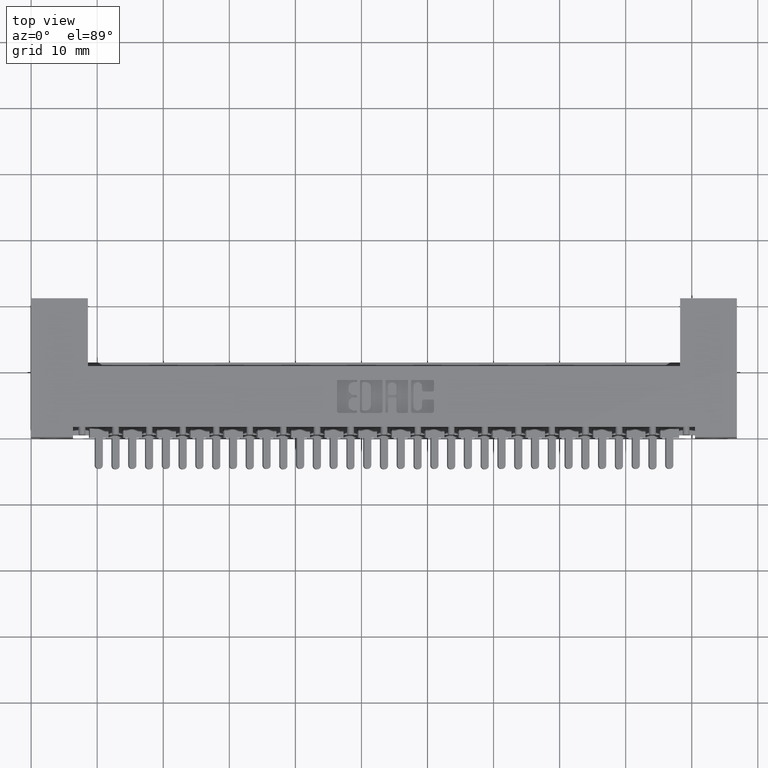
[diagram: clean part render]
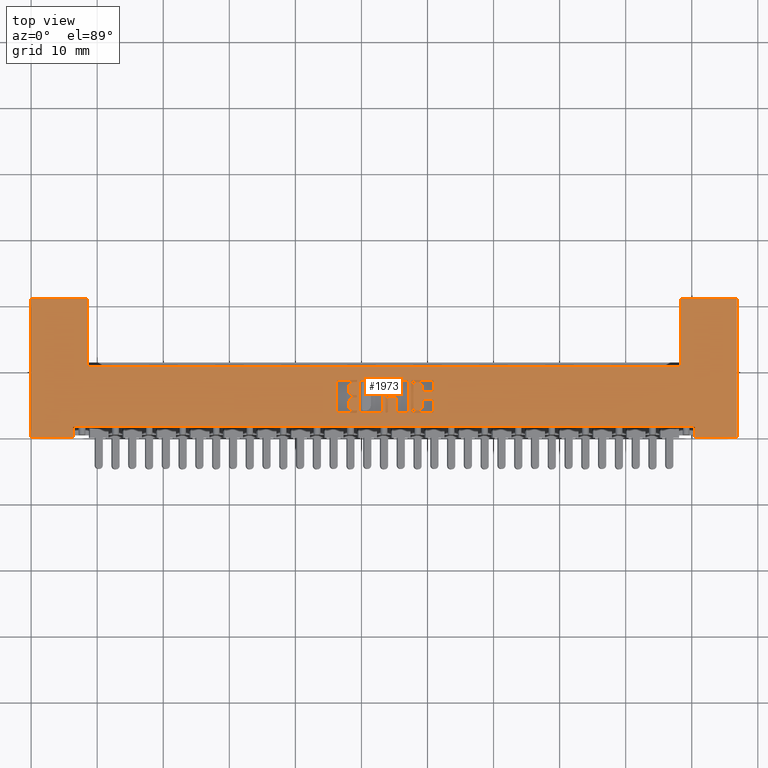
[diagram: same view with one face highlighted and labeled with its STEP entity id]
A machine part, top view. The second image highlights one B-rep face of the part: STEP entity #1973.
In plain terms, the highlighted planar face has unit normal (0, 0, -1).
Its self-contained STEP definition (entity closure, byte-faithful):
#9 = CARTESIAN_POINT ( 'NONE',  ( 2.084595643871274300, 0.3308410321796663200, 0.0000000000000000000 ) ) ;
#101 = DIRECTION ( 'NONE',  ( 0.9999999999999582600, -2.886930927459538800E-007, 0.0000000000000000000 ) ) ;
#108 = CIRCLE ( 'NONE', #17883, 0.009815670203788042300 ) ;
#110 = LINE ( 'NONE', #2342, #1793 ) ;
#122 = ORIENTED_EDGE ( 'NONE', *, *, #17453, .F. ) ;
#170 = CARTESIAN_POINT ( 'NONE',  ( 2.399678643103138500, 0.2812718066882052800, 0.0000000000000000000 ) ) ;
#174 = LINE ( 'NONE', #381, #25702 ) ;
#234 = CARTESIAN_POINT ( 'NONE',  ( 2.125330623360084400, 0.1512142556901892900, 0.0000000000000000000 ) ) ;
#257 = CARTESIAN_POINT ( 'NONE',  ( 2.389862936202675300, 0.1541588803826781100, 0.0000000000000000000 ) ) ;
#314 = DIRECTION ( 'NONE',  ( 1.000000000000000000, 0.0000000000000000000, 0.0000000000000000000 ) ) ;
#319 = ORIENTED_EDGE ( 'NONE', *, *, #20868, .T. ) ;
#333 = CARTESIAN_POINT ( 'NONE',  ( 3.956000000000000800, 0.01700000000000000100, 0.0000000000000000000 ) ) ;
#346 = AXIS2_PLACEMENT_3D ( 'NONE', #7627, #11995, #3388 ) ;
#356 = ORIENTED_EDGE ( 'NONE', *, *, #27713, .F. ) ;
#380 = ORIENTED_EDGE ( 'NONE', *, *, #7676, .T. ) ;
#381 = CARTESIAN_POINT ( 'NONE',  ( 2.111588641420079500, -6.096010680176711300E-007, 0.0000000000000000000 ) ) ;
#488 = DIRECTION ( 'NONE',  ( 0.9999999999999582600, -2.886930995702706400E-007, 0.0000000000000000000 ) ) ;
#608 = VERTEX_POINT ( 'NONE', #12569 ) ;
#634 = ORIENTED_EDGE ( 'NONE', *, *, #19447, .F. ) ;
#642 = ORIENTED_EDGE ( 'NONE', *, *, #12712, .T. ) ;
#663 = LINE ( 'NONE', #24072, #3071 ) ;
#696 = EDGE_CURVE ( 'NONE', #16460, #15430, #27455, .T. ) ;
#699 = CARTESIAN_POINT ( 'NONE',  ( 2.274038078804737900, 0.3308409774889427000, 0.0000000000000000000 ) ) ;
#736 = CARTESIAN_POINT ( 'NONE',  ( 9.834541294292976600E-008, 0.3406573041918382600, 0.0000000000000000000 ) ) ;
#740 = VERTEX_POINT ( 'NONE', #17736 ) ;
#752 = DIRECTION ( 'NONE',  ( -0.0000000000000000000, 0.0000000000000000000, 1.000000000000000000 ) ) ;
#760 = CIRCLE ( 'NONE', #21463, 0.006870969142662365600 ) ;
#783 = DIRECTION ( 'NONE',  ( 1.000000000000000000, 0.0000000000000000000, 0.0000000000000000000 ) ) ;
#787 = CARTESIAN_POINT ( 'NONE',  ( 1.936133606535316100, 0.2425000432054387200, 0.0000000000000000000 ) ) ;
#905 = ORIENTED_EDGE ( 'NONE', *, *, #19832, .F. ) ;
#969 = CARTESIAN_POINT ( 'NONE',  ( 2.330478086964901300, -6.727929743495902600E-007, 0.0000000000000000000 ) ) ;
#991 = LINE ( 'NONE', #5760, #24838 ) ;
#1001 = CARTESIAN_POINT ( 'NONE',  ( 2.237229261699841900, 0.1443432542431609100, 0.0000000000000000000 ) ) ;
#1023 = ORIENTED_EDGE ( 'NONE', *, *, #11450, .F. ) ;
#1079 = DIRECTION ( 'NONE',  ( -0.0000000000000000000, 0.0000000000000000000, 1.000000000000000000 ) ) ;
#1146 = CARTESIAN_POINT ( 'NONE',  ( 4.206000000000000400, 0.4530000000000000100, 0.0000000000000000000 ) ) ;
#1294 = VERTEX_POINT ( 'NONE', #26552 ) ;
#1309 = ORIENTED_EDGE ( 'NONE', *, *, #17000, .F. ) ;
#1380 = EDGE_CURVE ( 'NONE', #5560, #740, #16155, .T. ) ;
#1382 = CARTESIAN_POINT ( 'NONE',  ( 1.936133608518917600, 0.2493710123481019400, 0.0000000000000000000 ) ) ;
#1397 = CARTESIAN_POINT ( 'NONE',  ( 1.958955014255728400, 0.1541590047828217100, 0.0000000000000000000 ) ) ;
#1415 = CARTESIAN_POINT ( 'NONE',  ( 1.822026465919572400, 0.3308411079815762900, 0.0000000000000000000 ) ) ;
#1460 = VERTEX_POINT ( 'NONE', #18422 ) ;
#1591 = EDGE_CURVE ( 'NONE', #16635, #13195, #12323, .T. ) ;
#1592 = CARTESIAN_POINT ( 'NONE',  ( 2.247044985744246900, 0.3308409852816532900, 0.0000000000000000000 ) ) ;
#1629 = CARTESIAN_POINT ( 'NONE',  ( 2.264222408600897700, 0.3308409803226590200, 0.0000000000000000000 ) ) ;
#1652 = CARTESIAN_POINT ( 'NONE',  ( 1.822026414912679900, 0.1541590443131634600, 0.0000000000000000000 ) ) ;
#1688 = DIRECTION ( 'NONE',  ( -0.0000000000000000000, 0.0000000000000000000, 1.000000000000000000 ) ) ;
#1771 = LINE ( 'NONE', #12830, #9869 ) ;
#1793 = VECTOR ( 'NONE', #19808, 39.37007874015748100 ) ;
#1799 = CARTESIAN_POINT ( 'NONE',  ( 9.834541303839082900E-008, 0.3406573041918127300, 0.0000000000000000000 ) ) ;
#1845 = DIRECTION ( 'NONE',  ( 1.000000000000000000, 0.0000000000000000000, 0.0000000000000000000 ) ) ;
#1849 = VECTOR ( 'NONE', #27524, 39.37007874015748100 ) ;
#1864 = DIRECTION ( 'NONE',  ( 0.9999999999999582600, -2.886931011706142500E-007, 0.0000000000000000000 ) ) ;
#1937 = EDGE_CURVE ( 'NONE', #12313, #18016, #8872, .T. ) ;
#1956 = VECTOR ( 'NONE', #15905, 39.37007874015748900 ) ;
#1973 = ADVANCED_FACE ( 'NONE', ( #8546, #25633, #12990, #25315, #16750 ), #23099, .F. ) ;
#2052 = CARTESIAN_POINT ( 'NONE',  ( 1.891226845344686100, -5.459841365530928100E-007, 0.0000000000000000000 ) ) ;
#2098 = DIRECTION ( 'NONE',  ( 1.000000000000000000, 0.0000000000000000000, 0.0000000000000000000 ) ) ;
#2125 = CARTESIAN_POINT ( 'NONE',  ( 2.330478168166334900, 0.2812718266659114400, 0.0000000000000000000 ) ) ;
#2195 = CARTESIAN_POINT ( 'NONE',  ( 2.125330579705395200, -6.135682677858640600E-007, 0.0000000000000000000 ) ) ;
#2200 = DIRECTION ( 'NONE',  ( -0.0000000000000000000, 0.0000000000000000000, 1.000000000000000000 ) ) ;
#2269 = VERTEX_POINT ( 'NONE', #13127 ) ;
#2270 = EDGE_CURVE ( 'NONE', #21965, #7302, #760, .T. ) ;
#2275 = CIRCLE ( 'NONE', #5995, 0.03141014465221592800 ) ;
#2304 = CARTESIAN_POINT ( 'NONE',  ( 2.340293838370146200, 0.2812718238321951800, 0.0000000000000000000 ) ) ;
#2342 = CARTESIAN_POINT ( 'NONE',  ( 0.0000000000000000000, 0.0000000000000000000, 0.0000000000000000000 ) ) ;
#2436 = VECTOR ( 'NONE', #11374, 39.37007874015748100 ) ;
#2437 = DIRECTION ( 'NONE',  ( 2.886930993082860500E-007, 0.9999999999999582600, 0.0000000000000000000 ) ) ;
#2443 = CARTESIAN_POINT ( 'NONE',  ( 2.121404407135572400, 0.3308410215532304700, 0.0000000000000000000 ) ) ;
#2515 = DIRECTION ( 'NONE',  ( -0.0000000000000000000, -1.000000000000000000, -0.0000000000000000000 ) ) ;
#2634 = CARTESIAN_POINT ( 'NONE',  ( 1.831842136123395000, 0.3308411051478600300, 0.0000000000000000000 ) ) ;
#2643 = LINE ( 'NONE', #4227, #18683 ) ;
#2737 = CIRCLE ( 'NONE', #27468, 0.009815670203822736800 ) ;
#2792 = AXIS2_PLACEMENT_3D ( 'NONE', #4379, #13208, #6535 ) ;
#2921 = DIRECTION ( 'NONE',  ( -0.9999999999999582600, 2.886930992900222200E-007, 0.0000000000000000000 ) ) ;
#3007 = EDGE_CURVE ( 'NONE', #20203, #740, #8170, .T. ) ;
#3071 = VECTOR ( 'NONE', #101, 39.37007874015748100 ) ;
#3072 = EDGE_CURVE ( 'NONE', #21322, #27012, #10209, .T. ) ;
#3075 = DIRECTION ( 'NONE',  ( 2.886930987787375700E-007, 0.9999999999999582600, 0.0000000000000000000 ) ) ;
#3078 = CARTESIAN_POINT ( 'NONE',  ( 2.277964251374560600, -6.576325600655632200E-007, 0.0000000000000000000 ) ) ;
#3083 = CIRCLE ( 'NONE', #8775, 0.009815670203796237100 ) ;
#3107 = CARTESIAN_POINT ( 'NONE',  ( 2.247044934737354000, 0.1541589216132405200, 0.0000000000000000000 ) ) ;
#3110 = VECTOR ( 'NONE', #14564, 39.37007874015748100 ) ;
#3113 = EDGE_CURVE ( 'NONE', #13195, #10135, #14340, .T. ) ;
#3226 = DIRECTION ( 'NONE',  ( 1.000000000000000000, 0.0000000000000000000, 1.224646799147352200E-016 ) ) ;
#3255 = AXIS2_PLACEMENT_3D ( 'NONE', #8198, #19356, #6302 ) ;
#3269 = EDGE_CURVE ( 'NONE', #28165, #12313, #6133, .T. ) ;
#3388 = DIRECTION ( 'NONE',  ( -1.000000000000000000, 0.0000000000000000000, -0.0000000000000000000 ) ) ;
#3407 = ORIENTED_EDGE ( 'NONE', *, *, #17036, .F. ) ;
#3417 = DIRECTION ( 'NONE',  ( 1.000000000000000000, 0.0000000000000000000, 0.0000000000000000000 ) ) ;
#3561 = CARTESIAN_POINT ( 'NONE',  ( 2.177844459800534400, 0.1541589415909470900, 0.0000000000000000000 ) ) ;
#3588 = VERTEX_POINT ( 'NONE', #6137 ) ;
#3689 = CARTESIAN_POINT ( 'NONE',  ( 1.936133632888918700, 0.3337857761008008500, 0.0000000000000000000 ) ) ;
#3738 = ORIENTED_EDGE ( 'NONE', *, *, #3269, .F. ) ;
#3775 = CIRCLE ( 'NONE', #27220, 0.006870969142662365600 ) ;
#3784 = LINE ( 'NONE', #969, #2436 ) ;
#3788 = DIRECTION ( 'NONE',  ( -0.0000000000000000000, 0.0000000000000000000, 1.000000000000000000 ) ) ;
#3833 = DIRECTION ( 'NONE',  ( -0.9999999999999582600, 2.886930986054860300E-007, 0.0000000000000000000 ) ) ;
#3883 = VECTOR ( 'NONE', #17251, 39.37007874015748100 ) ;
#3911 = LINE ( 'NONE', #6247, #9328 ) ;
#3978 = VECTOR ( 'NONE', #3833, 39.37007874015748100 ) ;
#3996 = ORIENTED_EDGE ( 'NONE', *, *, #21897, .F. ) ;
#4038 = CARTESIAN_POINT ( 'NONE',  ( 9.437821079245119700E-008, 0.3269153659065455200, 0.0000000000000000000 ) ) ;
#4095 = VERTEX_POINT ( 'NONE', #170 ) ;
#4137 = DIRECTION ( 'NONE',  ( -0.0000000000000000000, 0.0000000000000000000, 1.000000000000000000 ) ) ;
#4227 = CARTESIAN_POINT ( 'NONE',  ( 0.0000000000000000000, 0.0000000000000000000, 0.0000000000000000000 ) ) ;
#4274 = EDGE_CURVE ( 'NONE', #16088, #15430, #2643, .T. ) ;
#4296 = EDGE_CURVE ( 'NONE', #9454, #16460, #9466, .T. ) ;
#4355 = VERTEX_POINT ( 'NONE', #13544 ) ;
#4361 = CARTESIAN_POINT ( 'NONE',  ( 0.2499999999999999200, 0.06200000000000000000, 4.969202552573302900E-028 ) ) ;
#4362 = DIRECTION ( 'NONE',  ( -0.0000000000000000000, 0.0000000000000000000, 1.000000000000000000 ) ) ;
#4379 = CARTESIAN_POINT ( 'NONE',  ( 1.831842085116486300, 0.1541590414794472300, 0.0000000000000000000 ) ) ;
#4397 = CARTESIAN_POINT ( 'NONE',  ( 1.891226930654985800, 0.2955046752701878100, 0.0000000000000000000 ) ) ;
#4459 = DIRECTION ( 'NONE',  ( -0.0000000000000000000, 0.0000000000000000000, 1.000000000000000000 ) ) ;
#4478 = VERTEX_POINT ( 'NONE', #9217 ) ;
#4489 = DIRECTION ( 'NONE',  ( -0.0000000000000000000, 0.0000000000000000000, 1.000000000000000000 ) ) ;
#4535 = ORIENTED_EDGE ( 'NONE', *, *, #8171, .F. ) ;
#4737 = VERTEX_POINT ( 'NONE', #6648 ) ;
#4837 = LINE ( 'NONE', #26983, #10890 ) ;
#5010 = ORIENTED_EDGE ( 'NONE', *, *, #27463, .F. ) ;
#5053 = EDGE_CURVE ( 'NONE', #21460, #28165, #19281, .T. ) ;
#5090 = ORIENTED_EDGE ( 'NONE', *, *, #9871, .F. ) ;
#5114 = VERTEX_POINT ( 'NONE', #18091 ) ;
#5150 = CIRCLE ( 'NONE', #14837, 0.009815670203806345400 ) ;
#5218 = VECTOR ( 'NONE', #27770, 39.37007874015748100 ) ;
#5238 = DIRECTION ( 'NONE',  ( 2.886930994060638800E-007, 0.9999999999999582600, 0.0000000000000000000 ) ) ;
#5305 = VECTOR ( 'NONE', #27706, 39.37007874015748900 ) ;
#5346 = CARTESIAN_POINT ( 'NONE',  ( 2.304221255967752000, 0.3006577828985859700, 0.0000000000000000000 ) ) ;
#5452 = AXIS2_PLACEMENT_3D ( 'NONE', #10188, #1688, #12487 ) ;
#5522 = DIRECTION ( 'NONE',  ( 1.000000000000000000, 0.0000000000000000000, 0.0000000000000000000 ) ) ;
#5560 = VERTEX_POINT ( 'NONE', #1001 ) ;
#5578 = EDGE_CURVE ( 'NONE', #12685, #8982, #25454, .T. ) ;
#5592 = CARTESIAN_POINT ( 'NONE',  ( 2.247044890232549700, -6.487063571204774200E-007, 0.0000000000000000000 ) ) ;
#5599 = LINE ( 'NONE', #2052, #3883 ) ;
#5611 = VERTEX_POINT ( 'NONE', #18480 ) ;
#5684 = EDGE_CURVE ( 'NONE', #11217, #26999, #2275, .T. ) ;
#5705 = CIRCLE ( 'NONE', #3255, 0.009815670203797057700 ) ;
#5709 = DIRECTION ( 'NONE',  ( -0.0000000000000000000, 0.0000000000000000000, 1.000000000000000000 ) ) ;
#5756 = DIRECTION ( 'NONE',  ( 1.000000000000000000, 0.0000000000000000000, 0.0000000000000000000 ) ) ;
#5758 = ORIENTED_EDGE ( 'NONE', *, *, #6541, .F. ) ;
#5760 = CARTESIAN_POINT ( 'NONE',  ( 4.167108792849895600E-008, 0.1443439001157974800, 0.0000000000000000000 ) ) ;
#5766 = ORIENTED_EDGE ( 'NONE', *, *, #23753, .T. ) ;
#5771 = AXIS2_PLACEMENT_3D ( 'NONE', #13703, #13801, #15915 ) ;
#5954 = CIRCLE ( 'NONE', #26486, 0.03141014465218178200 ) ;
#5995 = AXIS2_PLACEMENT_3D ( 'NONE', #12250, #5709, #16660 ) ;
#6015 = CARTESIAN_POINT ( 'NONE',  ( 6.802464948169137100E-008, 0.2356296330111704000, 0.0000000000000000000 ) ) ;
#6133 = CIRCLE ( 'NONE', #22992, 0.009815670203840767500 ) ;
#6137 = CARTESIAN_POINT ( 'NONE',  ( 2.111588685074768700, 0.1512142596573920500, 0.0000000000000000000 ) ) ;
#6158 = EDGE_CURVE ( 'NONE', #8956, #8249, #10660, .T. ) ;
#6163 = ORIENTED_EDGE ( 'NONE', *, *, #3072, .F. ) ;
#6176 = EDGE_CURVE ( 'NONE', #18405, #14403, #5954, .T. ) ;
#6202 = VERTEX_POINT ( 'NONE', #10018 ) ;
#6234 = VERTEX_POINT ( 'NONE', #23770 ) ;
#6247 = CARTESIAN_POINT ( 'NONE',  ( 0.0000000000000000000, 0.4530000000000000100, 0.0000000000000000000 ) ) ;
#6249 = LINE ( 'NONE', #7999, #22327 ) ;
#6260 = ORIENTED_EDGE ( 'NONE', *, *, #5578, .F. ) ;
#6263 = CARTESIAN_POINT ( 'NONE',  ( 2.277964338172579600, 0.3006577904787769400, 0.0000000000000000000 ) ) ;
#6277 = AXIS2_PLACEMENT_3D ( 'NONE', #10205, #16907, #8034 ) ;
#6279 = CARTESIAN_POINT ( 'NONE',  ( 0.2499999999999999200, 0.01700000000000000100, 4.969202552573302900E-028 ) ) ;
#6302 = DIRECTION ( 'NONE',  ( 1.000000000000000000, 0.0000000000000000000, 0.0000000000000000000 ) ) ;
#6310 = VERTEX_POINT ( 'NONE', #6504 ) ;
#6357 = DIRECTION ( 'NONE',  ( 1.000000000000000000, 0.0000000000000000000, 0.0000000000000000000 ) ) ;
#6476 = CIRCLE ( 'NONE', #8955, 0.03141014465215637200 ) ;
#6478 = CARTESIAN_POINT ( 'NONE',  ( 2.237229318374170300, 0.3406566583191748000, 0.0000000000000000000 ) ) ;
#6504 = CARTESIAN_POINT ( 'NONE',  ( 0.3380000000000002400, 0.4229999999999999900, 0.0000000000000000000 ) ) ;
#6535 = DIRECTION ( 'NONE',  ( 1.000000000000000000, 0.0000000000000000000, 0.0000000000000000000 ) ) ;
#6539 = CARTESIAN_POINT ( 'NONE',  ( 0.0000000000000000000, 0.8280000000000000700, 0.0000000000000000000 ) ) ;
#6541 = EDGE_CURVE ( 'NONE', #608, #14403, #18231, .T. ) ;
#6648 = CARTESIAN_POINT ( 'NONE',  ( 1.958955065262620900, 0.3308410684512345700, 0.0000000000000000000 ) ) ;
#6660 = VERTEX_POINT ( 'NONE', #11297 ) ;
#6780 = ORIENTED_EDGE ( 'NONE', *, *, #7362, .T. ) ;
#6788 = DIRECTION ( 'NONE',  ( -0.9999999999999582600, 2.886930995702713300E-007, 0.0000000000000000000 ) ) ;
#6844 = CIRCLE ( 'NONE', #14304, 0.006870969142663458500 ) ;
#6897 = ORIENTED_EDGE ( 'NONE', *, *, #11761, .F. ) ;
#6940 = DIRECTION ( 'NONE',  ( -2.886930993082861600E-007, -0.9999999999999582600, 0.0000000000000000000 ) ) ;
#6953 = CARTESIAN_POINT ( 'NONE',  ( 2.274038027797811200, 0.1541589138205299000, 0.0000000000000000000 ) ) ;
#6978 = EDGE_CURVE ( 'NONE', #21322, #16088, #3911, .T. ) ;
#7075 = VECTOR ( 'NONE', #488, 39.37007874015748100 ) ;
#7093 = VERTEX_POINT ( 'NONE', #10788 ) ;
#7143 = EDGE_CURVE ( 'NONE', #25084, #21848, #18875, .T. ) ;
#7238 = CARTESIAN_POINT ( 'NONE',  ( 1.936133578078258000, 0.1443433411674081600, 0.0000000000000000000 ) ) ;
#7250 = DIRECTION ( 'NONE',  ( -0.0000000000000000000, 0.0000000000000000000, 1.000000000000000000 ) ) ;
#7261 = ORIENTED_EDGE ( 'NONE', *, *, #7143, .F. ) ;
#7266 = CARTESIAN_POINT ( 'NONE',  ( 2.330478140183400300, 0.1843420834033232500, 0.0000000000000000000 ) ) ;
#7302 = VERTEX_POINT ( 'NONE', #14609 ) ;
#7306 = CARTESIAN_POINT ( 'NONE',  ( 2.277964304593042200, 0.1843420985637052000, 0.0000000000000000000 ) ) ;
#7312 = DIRECTION ( 'NONE',  ( 1.000000000000000000, 0.0000000000000000000, 0.0000000000000000000 ) ) ;
#7362 = EDGE_CURVE ( 'NONE', #6310, #27012, #6249, .T. ) ;
#7475 = DIRECTION ( 'NONE',  ( -0.0000000000000000000, 0.0000000000000000000, 1.000000000000000000 ) ) ;
#7479 = LINE ( 'NONE', #8301, #10844 ) ;
#7481 = EDGE_CURVE ( 'NONE', #18405, #6202, #5599, .T. ) ;
#7503 = CARTESIAN_POINT ( 'NONE',  ( 2.111588736931776300, 0.3308410243869467900, 0.0000000000000000000 ) ) ;
#7563 = LINE ( 'NONE', #19542, #8879 ) ;
#7627 = CARTESIAN_POINT ( 'NONE',  ( 0.0000000000000000000, 0.4530000000000000100, 0.0000000000000000000 ) ) ;
#7676 = EDGE_CURVE ( 'NONE', #9789, #13972, #7921, .T. ) ;
#7841 = AXIS2_PLACEMENT_3D ( 'NONE', #3689, #18781, #23303 ) ;
#7846 = CARTESIAN_POINT ( 'NONE',  ( 2.389862956322083200, 0.2238501388296428000, 0.0000000000000000000 ) ) ;
#7896 = DIRECTION ( 'NONE',  ( -0.0000000000000000000, 0.0000000000000000000, 1.000000000000000000 ) ) ;
#7921 = CIRCLE ( 'NONE', #27094, 0.02625691779517367100 ) ;
#7999 = CARTESIAN_POINT ( 'NONE',  ( 0.3380000000000002400, 0.4229999999999999900, 0.0000000000000000000 ) ) ;
#8034 = DIRECTION ( 'NONE',  ( 1.000000000000000000, 0.0000000000000000000, 0.0000000000000000000 ) ) ;
#8116 = DIRECTION ( 'NONE',  ( 1.000000000000000000, 0.0000000000000000000, 0.0000000000000000000 ) ) ;
#8170 = CIRCLE ( 'NONE', #26451, 0.009815670203803340800 ) ;
#8171 = EDGE_CURVE ( 'NONE', #6310, #5611, #7563, .T. ) ;
#8198 = CARTESIAN_POINT ( 'NONE',  ( 2.168028810282866600, 0.2258133369124253300, 0.0000000000000000000 ) ) ;
#8242 = ORIENTED_EDGE ( 'NONE', *, *, #26907, .T. ) ;
#8249 = VERTEX_POINT ( 'NONE', #7266 ) ;
#8301 = CARTESIAN_POINT ( 'NONE',  ( 2.399678561901708000, -6.927706478084932600E-007, 0.0000000000000000000 ) ) ;
#8305 = ORIENTED_EDGE ( 'NONE', *, *, #15546, .F. ) ;
#8313 = EDGE_CURVE ( 'NONE', #18772, #10736, #17088, .T. ) ;
#8346 = LINE ( 'NONE', #21260, #3978 ) ;
#8397 = DIRECTION ( 'NONE',  ( 2.886931019875655600E-007, 0.9999999999999582600, 0.0000000000000000000 ) ) ;
#8546 = FACE_BOUND ( 'NONE', #8790, .T. ) ;
#8625 = ORIENTED_EDGE ( 'NONE', *, *, #1380, .T. ) ;
#8644 = AXIS2_PLACEMENT_3D ( 'NONE', #19000, #10224, #12714 ) ;
#8681 = DIRECTION ( 'NONE',  ( 2.886930986745972500E-007, 0.9999999999999582600, 0.0000000000000000000 ) ) ;
#8701 = AXIS2_PLACEMENT_3D ( 'NONE', #21919, #17419, #8809 ) ;
#8775 = AXIS2_PLACEMENT_3D ( 'NONE', #14152, #20552, #13869 ) ;
#8790 = EDGE_LOOP ( 'NONE', ( #19072, #5010, #15914, #1023, #380, #15315, #12979, #12353, #24755, #26807, #6260, #21447, #23904, #12198, #3996, #20896, #3738, #10132, #12227, #6897 ) ) ;
#8809 = DIRECTION ( 'NONE',  ( 1.000000000000000000, 0.0000000000000000000, 0.0000000000000000000 ) ) ;
#8843 = DIRECTION ( 'NONE',  ( -0.0000000000000000000, 0.0000000000000000000, 1.000000000000000000 ) ) ;
#8871 = CARTESIAN_POINT ( 'NONE',  ( 3.867999999999999900, 0.4229999999999999900, 0.0000000000000000000 ) ) ;
#8872 = LINE ( 'NONE', #14502, #14040 ) ;
#8879 = VECTOR ( 'NONE', #11434, 39.37007874015748100 ) ;
#8887 = ORIENTED_EDGE ( 'NONE', *, *, #696, .F. ) ;
#8935 = DIRECTION ( 'NONE',  ( 1.000000000000000000, 0.0000000000000000000, 0.0000000000000000000 ) ) ;
#8955 = AXIS2_PLACEMENT_3D ( 'NONE', #28205, #4459, #12575 ) ;
#8956 = VERTEX_POINT ( 'NONE', #18617 ) ;
#8963 = EDGE_CURVE ( 'NONE', #14611, #16794, #18842, .T. ) ;
#8982 = VERTEX_POINT ( 'NONE', #7846 ) ;
#9023 = ORIENTED_EDGE ( 'NONE', *, *, #24341, .F. ) ;
#9165 = CIRCLE ( 'NONE', #22167, 0.02625691779518022500 ) ;
#9217 = CARTESIAN_POINT ( 'NONE',  ( 2.094411314075114800, 0.3308410293459502200, 0.0000000000000000000 ) ) ;
#9283 = DIRECTION ( 'NONE',  ( -0.0000000000000000000, 0.0000000000000000000, 1.000000000000000000 ) ) ;
#9306 = CARTESIAN_POINT ( 'NONE',  ( 1.831842082282766600, 0.1443433712756426500, 0.0000000000000000000 ) ) ;
#9328 = VECTOR ( 'NONE', #10592, 39.37007874015748100 ) ;
#9411 = EDGE_LOOP ( 'NONE', ( #23816, #18193, #23190, #122, #11936, #5090, #9023, #10866 ) ) ;
#9426 = DIRECTION ( 'NONE',  ( 1.000000000000000000, 0.0000000000000000000, 0.0000000000000000000 ) ) ;
#9454 = VERTEX_POINT ( 'NONE', #10136 ) ;
#9466 = LINE ( 'NONE', #21665, #16647 ) ;
#9477 = CIRCLE ( 'NONE', #17438, 0.009815670203804980100 ) ;
#9676 = DIRECTION ( 'NONE',  ( 1.000000000000000000, 0.0000000000000000000, 0.0000000000000000000 ) ) ;
#9789 = VERTEX_POINT ( 'NONE', #23131 ) ;
#9804 = ORIENTED_EDGE ( 'NONE', *, *, #11770, .T. ) ;
#9819 = AXIS2_PLACEMENT_3D ( 'NONE', #13926, #26914, #11692 ) ;
#9869 = VECTOR ( 'NONE', #21742, 39.37007874015748100 ) ;
#9871 = EDGE_CURVE ( 'NONE', #4737, #14682, #13034, .T. ) ;
#9975 = VECTOR ( 'NONE', #22953, 39.37007874015748100 ) ;
#10018 = CARTESIAN_POINT ( 'NONE',  ( 1.891226904301442900, 0.2042189423748724000, 0.0000000000000000000 ) ) ;
#10031 = EDGE_LOOP ( 'NONE', ( #9804, #21876, #15621, #12853, #8625, #17298, #5766, #642, #10313, #12346, #16320, #18832, #319, #24645 ) ) ;
#10034 = CARTESIAN_POINT ( 'NONE',  ( 2.389862990043318400, 0.3406566142549314300, 0.0000000000000000000 ) ) ;
#10132 = ORIENTED_EDGE ( 'NONE', *, *, #5053, .F. ) ;
#10135 = VERTEX_POINT ( 'NONE', #11883 ) ;
#10136 = CARTESIAN_POINT ( 'NONE',  ( 3.956000000000000800, 0.06200000000000000000, 0.0000000000000000000 ) ) ;
#10140 = DIRECTION ( 'NONE',  ( -0.0000000000000000000, 0.0000000000000000000, 1.000000000000000000 ) ) ;
#10188 = CARTESIAN_POINT ( 'NONE',  ( 2.135146315100130600, 0.2258133464053675700, 0.0000000000000000000 ) ) ;
#10190 = EDGE_CURVE ( 'NONE', #3588, #12047, #13714, .T. ) ;
#10205 = CARTESIAN_POINT ( 'NONE',  ( 2.237229315540451700, 0.3308409881153789300, 0.0000000000000000000 ) ) ;
#10209 = LINE ( 'NONE', #27237, #18751 ) ;
#10224 = DIRECTION ( 'NONE',  ( -0.0000000000000000000, 0.0000000000000000000, 1.000000000000000000 ) ) ;
#10313 = ORIENTED_EDGE ( 'NONE', *, *, #1591, .T. ) ;
#10323 = DIRECTION ( 'NONE',  ( 1.000000000000000000, 0.0000000000000000000, 0.0000000000000000000 ) ) ;
#10592 = DIRECTION ( 'NONE',  ( -0.0000000000000000000, -1.000000000000000000, -0.0000000000000000000 ) ) ;
#10660 = LINE ( 'NONE', #12406, #5305 ) ;
#10668 = CARTESIAN_POINT ( 'NONE',  ( 1.831842138957111100, 0.3406567753516821500, 0.0000000000000000000 ) ) ;
#10736 = VERTEX_POINT ( 'NONE', #25632 ) ;
#10788 = CARTESIAN_POINT ( 'NONE',  ( 2.340293821792895500, 0.2238501531399098600, 0.0000000000000000000 ) ) ;
#10844 = VECTOR ( 'NONE', #8397, 39.37007874015748900 ) ;
#10866 = ORIENTED_EDGE ( 'NONE', *, *, #13404, .F. ) ;
#10890 = VECTOR ( 'NONE', #3075, 39.37007874015748100 ) ;
#11058 = DIRECTION ( 'NONE',  ( -0.0000000000000000000, 1.000000000000000000, -0.0000000000000000000 ) ) ;
#11100 = ORIENTED_EDGE ( 'NONE', *, *, #8313, .F. ) ;
#11133 = CARTESIAN_POINT ( 'NONE',  ( 1.968770738300177600, 0.3406567358213587500, 0.0000000000000000000 ) ) ;
#11217 = VERTEX_POINT ( 'NONE', #22756 ) ;
#11223 = CARTESIAN_POINT ( 'NONE',  ( 1.968770681625818100, 0.1443433317452990900, 0.0000000000000000000 ) ) ;
#11264 = VERTEX_POINT ( 'NONE', #2125 ) ;
#11297 = CARTESIAN_POINT ( 'NONE',  ( 3.956000000000000800, 0.0000000000000000000, 0.0000000000000000000 ) ) ;
#11337 = VECTOR ( 'NONE', #21554, 39.37007874015748100 ) ;
#11374 = DIRECTION ( 'NONE',  ( -2.886931132769303700E-007, -0.9999999999999582600, 0.0000000000000000000 ) ) ;
#11406 = DIRECTION ( 'NONE',  ( 1.000000000000000000, 0.0000000000000000000, 0.0000000000000000000 ) ) ;
#11434 = DIRECTION ( 'NONE',  ( 1.000000000000000000, -0.0000000000000000000, 0.0000000000000000000 ) ) ;
#11437 = LINE ( 'NONE', #19061, #12452 ) ;
#11450 = EDGE_CURVE ( 'NONE', #9789, #11264, #3784, .T. ) ;
#11561 = LINE ( 'NONE', #18808, #3110 ) ;
#11621 = EDGE_CURVE ( 'NONE', #10736, #14891, #24226, .T. ) ;
#11661 = VERTEX_POINT ( 'NONE', #1415 ) ;
#11662 = ORIENTED_EDGE ( 'NONE', *, *, #16131, .F. ) ;
#11684 = EDGE_CURVE ( 'NONE', #14611, #14858, #19042, .T. ) ;
#11692 = DIRECTION ( 'NONE',  ( 1.000000000000000000, 0.0000000000000000000, 0.0000000000000000000 ) ) ;
#11715 = AXIS2_PLACEMENT_3D ( 'NONE', #2304, #4362, #21809 ) ;
#11746 = CARTESIAN_POINT ( 'NONE',  ( 2.187660130004337200, 0.1541589387572308300, 0.0000000000000000000 ) ) ;
#11761 = EDGE_CURVE ( 'NONE', #4095, #23017, #7479, .T. ) ;
#11770 = EDGE_CURVE ( 'NONE', #12560, #14858, #27287, .T. ) ;
#11835 = VECTOR ( 'NONE', #14632, 39.37007874015748100 ) ;
#11883 = CARTESIAN_POINT ( 'NONE',  ( 2.125330644896327400, 0.2258133492390838600, 0.0000000000000000000 ) ) ;
#11936 = ORIENTED_EDGE ( 'NONE', *, *, #20658, .F. ) ;
#11995 = DIRECTION ( 'NONE',  ( 0.0000000000000000000, 0.0000000000000000000, -1.000000000000000000 ) ) ;
#12047 = VERTEX_POINT ( 'NONE', #234 ) ;
#12103 = EDGE_CURVE ( 'NONE', #26327, #4095, #9477, .T. ) ;
#12105 = ORIENTED_EDGE ( 'NONE', *, *, #12329, .F. ) ;
#12154 = VERTEX_POINT ( 'NONE', #18205 ) ;
#12198 = ORIENTED_EDGE ( 'NONE', *, *, #26175, .F. ) ;
#12227 = ORIENTED_EDGE ( 'NONE', *, *, #23437, .F. ) ;
#12250 = CARTESIAN_POINT ( 'NONE',  ( 1.922637075307200000, 0.2955046662022958700, 0.0000000000000000000 ) ) ;
#12266 = CARTESIAN_POINT ( 'NONE',  ( 1.922637071056584100, 0.2807811608966349600, 0.0000000000000000000 ) ) ;
#12267 = DIRECTION ( 'NONE',  ( -2.886930993082861600E-007, -0.9999999999999582600, 0.0000000000000000000 ) ) ;
#12313 = VERTEX_POINT ( 'NONE', #1629 ) ;
#12320 = DIRECTION ( 'NONE',  ( -0.9999999999999582600, 2.886930992317773200E-007, 0.0000000000000000000 ) ) ;
#12323 = LINE ( 'NONE', #21094, #5218 ) ;
#12329 = EDGE_CURVE ( 'NONE', #27537, #18598, #27256, .T. ) ;
#12346 = ORIENTED_EDGE ( 'NONE', *, *, #3113, .T. ) ;
#12353 = ORIENTED_EDGE ( 'NONE', *, *, #6158, .F. ) ;
#12406 = CARTESIAN_POINT ( 'NONE',  ( 2.330478086964919500, -6.727929321171068800E-007, 0.0000000000000000000 ) ) ;
#12452 = VECTOR ( 'NONE', #6788, 39.37007874015748100 ) ;
#12465 = CARTESIAN_POINT ( 'NONE',  ( 1.891226900050868600, 0.1894954370691628000, 0.0000000000000000000 ) ) ;
#12487 = DIRECTION ( 'NONE',  ( 1.000000000000000000, 0.0000000000000000000, 0.0000000000000000000 ) ) ;
#12506 = AXIS2_PLACEMENT_3D ( 'NONE', #6953, #13636, #11406 ) ;
#12560 = VERTEX_POINT ( 'NONE', #26964 ) ;
#12569 = CARTESIAN_POINT ( 'NONE',  ( 1.936133582045460600, 0.1580852794527321500, 0.0000000000000000000 ) ) ;
#12575 = DIRECTION ( 'NONE',  ( 1.000000000000000000, 0.0000000000000000000, 0.0000000000000000000 ) ) ;
#12604 = DIRECTION ( 'NONE',  ( 0.9999999999999582600, -2.886930995702699500E-007, 0.0000000000000000000 ) ) ;
#12685 = VERTEX_POINT ( 'NONE', #21024 ) ;
#12712 = EDGE_CURVE ( 'NONE', #21049, #16635, #5705, .T. ) ;
#12714 = DIRECTION ( 'NONE',  ( 1.000000000000000000, 0.0000000000000000000, 0.0000000000000000000 ) ) ;
#12756 = CARTESIAN_POINT ( 'NONE',  ( 4.206000000000000400, 0.0000000000000000000, 0.0000000000000000000 ) ) ;
#12770 = CARTESIAN_POINT ( 'NONE',  ( 2.389862933368959400, 0.1443432101788717200, 0.0000000000000000000 ) ) ;
#12793 = VERTEX_POINT ( 'NONE', #27982 ) ;
#12830 = CARTESIAN_POINT ( 'NONE',  ( 1.891226845344668100, -5.459841365548959300E-007, 0.0000000000000000000 ) ) ;
#12853 = ORIENTED_EDGE ( 'NONE', *, *, #27882, .F. ) ;
#12899 = CIRCLE ( 'NONE', #11715, 0.009815670203811535700 ) ;
#12901 = VERTEX_POINT ( 'NONE', #11223 ) ;
#12979 = ORIENTED_EDGE ( 'NONE', *, *, #16908, .T. ) ;
#12990 = FACE_OUTER_BOUND ( 'NONE', #20898, .T. ) ;
#13031 = CARTESIAN_POINT ( 'NONE',  ( 1.936133580181780700, 0.1512143103100701000, 0.0000000000000000000 ) ) ;
#13034 = LINE ( 'NONE', #27700, #1849 ) ;
#13086 = CARTESIAN_POINT ( 'NONE',  ( 1.922637061988692300, 0.2493710162444617900, 0.0000000000000000000 ) ) ;
#13123 = CIRCLE ( 'NONE', #21112, 0.006870969142648433200 ) ;
#13127 = CARTESIAN_POINT ( 'NONE',  ( 1.891226926404411300, 0.2807811699645270100, 0.0000000000000000000 ) ) ;
#13146 = CARTESIAN_POINT ( 'NONE',  ( 2.094411218563418500, -6.046420659131426200E-007, 0.0000000000000000000 ) ) ;
#13156 = DIRECTION ( 'NONE',  ( 1.000000000000000000, 0.0000000000000000000, 0.0000000000000000000 ) ) ;
#13195 = VERTEX_POINT ( 'NONE', #24569 ) ;
#13208 = DIRECTION ( 'NONE',  ( -0.0000000000000000000, 0.0000000000000000000, 1.000000000000000000 ) ) ;
#13235 = LINE ( 'NONE', #24466, #7075 ) ;
#13404 = EDGE_CURVE ( 'NONE', #12793, #26458, #11437, .T. ) ;
#13521 = CARTESIAN_POINT ( 'NONE',  ( 2.399678657413405700, 0.3308409412173594100, 0.0000000000000000000 ) ) ;
#13544 = CARTESIAN_POINT ( 'NONE',  ( 1.943004602031567200, 0.3337857761008008500, 0.0000000000000000000 ) ) ;
#13631 = LINE ( 'NONE', #736, #22522 ) ;
#13636 = DIRECTION ( 'NONE',  ( -0.0000000000000000000, 0.0000000000000000000, 1.000000000000000000 ) ) ;
#13703 = CARTESIAN_POINT ( 'NONE',  ( 1.968770684459534700, 0.1541590019491054500, 0.0000000000000000000 ) ) ;
#13714 = CIRCLE ( 'NONE', #26190, 0.006870969142657995000 ) ;
#13801 = DIRECTION ( 'NONE',  ( -0.0000000000000000000, 0.0000000000000000000, 1.000000000000000000 ) ) ;
#13869 = DIRECTION ( 'NONE',  ( 1.000000000000000000, 0.0000000000000000000, 0.0000000000000000000 ) ) ;
#13903 = DIRECTION ( 'NONE',  ( -0.0000000000000000000, 0.0000000000000000000, 1.000000000000000000 ) ) ;
#13926 = CARTESIAN_POINT ( 'NONE',  ( 2.389862953488363300, 0.2140344686258560900, 0.0000000000000000000 ) ) ;
#13972 = VERTEX_POINT ( 'NONE', #6263 ) ;
#14040 = VECTOR ( 'NONE', #12267, 39.37007874015748100 ) ;
#14152 = CARTESIAN_POINT ( 'NONE',  ( 2.237229264533557900, 0.1541589244469567200, 0.0000000000000000000 ) ) ;
#14300 = VECTOR ( 'NONE', #12320, 39.37007874015748100 ) ;
#14302 = VERTEX_POINT ( 'NONE', #7306 ) ;
#14304 = AXIS2_PLACEMENT_3D ( 'NONE', #787, #13903, #7312 ) ;
#14340 = CIRCLE ( 'NONE', #5452, 0.009815670203803340800 ) ;
#14392 = CIRCLE ( 'NONE', #8701, 0.009815670203839947000 ) ;
#14403 = VERTEX_POINT ( 'NONE', #14617 ) ;
#14463 = CARTESIAN_POINT ( 'NONE',  ( 6.462418952222502900E-008, 0.2238508287665677600, 0.0000000000000000000 ) ) ;
#14502 = CARTESIAN_POINT ( 'NONE',  ( 2.264222313089201000, -6.536653570887252100E-007, 0.0000000000000000000 ) ) ;
#14564 = DIRECTION ( 'NONE',  ( 0.9999999999999582600, -2.886930992317773200E-007, 0.0000000000000000000 ) ) ;
#14609 = CARTESIAN_POINT ( 'NONE',  ( 1.943004549324443000, 0.1512143103100701000, 0.0000000000000000000 ) ) ;
#14611 = VERTEX_POINT ( 'NONE', #1592 ) ;
#14617 = CARTESIAN_POINT ( 'NONE',  ( 1.922637035635156500, 0.1580852833490903300, 0.0000000000000000000 ) ) ;
#14632 = DIRECTION ( 'NONE',  ( 2.886930971537500200E-007, 0.9999999999999582600, 0.0000000000000000000 ) ) ;
#14673 = CIRCLE ( 'NONE', #25577, 0.009815670203840767500 ) ;
#14682 = VERTEX_POINT ( 'NONE', #1397 ) ;
#14753 = VERTEX_POINT ( 'NONE', #1382 ) ;
#14829 = DIRECTION ( 'NONE',  ( 1.000000000000000000, 0.0000000000000000000, 0.0000000000000000000 ) ) ;
#14837 = AXIS2_PLACEMENT_3D ( 'NONE', #257, #17451, #13156 ) ;
#14858 = VERTEX_POINT ( 'NONE', #6478 ) ;
#14891 = VERTEX_POINT ( 'NONE', #12756 ) ;
#15081 = LINE ( 'NONE', #19905, #21564 ) ;
#15232 = LINE ( 'NONE', #13146, #24456 ) ;
#15315 = ORIENTED_EDGE ( 'NONE', *, *, #19662, .F. ) ;
#15430 = VERTEX_POINT ( 'NONE', #16959 ) ;
#15484 = VECTOR ( 'NONE', #1864, 39.37007874015748900 ) ;
#15503 = EDGE_CURVE ( 'NONE', #9454, #6660, #20887, .T. ) ;
#15521 = EDGE_CURVE ( 'NONE', #6660, #14891, #110, .T. ) ;
#15546 = EDGE_CURVE ( 'NONE', #11661, #25084, #15081, .T. ) ;
#15621 = ORIENTED_EDGE ( 'NONE', *, *, #8963, .T. ) ;
#15905 = DIRECTION ( 'NONE',  ( -0.9999999999999582600, 2.886930995703135200E-007, 0.0000000000000000000 ) ) ;
#15914 = ORIENTED_EDGE ( 'NONE', *, *, #27624, .F. ) ;
#15915 = DIRECTION ( 'NONE',  ( 1.000000000000000000, 0.0000000000000000000, 0.0000000000000000000 ) ) ;
#15968 = ORIENTED_EDGE ( 'NONE', *, *, #20784, .F. ) ;
#16064 = CARTESIAN_POINT ( 'NONE',  ( 3.867999999999999900, 0.8280000000000000700, 0.0000000000000000000 ) ) ;
#16067 = CARTESIAN_POINT ( 'NONE',  ( 1.936133580181780700, 0.1512143103100701000, 0.0000000000000000000 ) ) ;
#16088 = VERTEX_POINT ( 'NONE', #27942 ) ;
#16131 = EDGE_CURVE ( 'NONE', #2269, #26999, #1771, .T. ) ;
#16155 = LINE ( 'NONE', #20443, #20590 ) ;
#16206 = CIRCLE ( 'NONE', #23484, 0.009815670203796511200 ) ;
#16312 = CARTESIAN_POINT ( 'NONE',  ( 2.340293835536429800, 0.2714561536283839900, 0.0000000000000000000 ) ) ;
#16319 = EDGE_CURVE ( 'NONE', #18598, #14753, #6844, .T. ) ;
#16320 = ORIENTED_EDGE ( 'NONE', *, *, #20907, .T. ) ;
#16434 = ORIENTED_EDGE ( 'NONE', *, *, #15503, .T. ) ;
#16460 = VERTEX_POINT ( 'NONE', #4361 ) ;
#16475 = EDGE_CURVE ( 'NONE', #20999, #6202, #6476, .T. ) ;
#16542 = EDGE_CURVE ( 'NONE', #19890, #5114, #5150, .T. ) ;
#16635 = VERTEX_POINT ( 'NONE', #19532 ) ;
#16647 = VECTOR ( 'NONE', #26145, 39.37007874015748100 ) ;
#16660 = DIRECTION ( 'NONE',  ( 1.000000000000000000, 0.0000000000000000000, 0.0000000000000000000 ) ) ;
#16695 = CARTESIAN_POINT ( 'NONE',  ( 1.936133632888918700, 0.3337857761008008500, 0.0000000000000000000 ) ) ;
#16701 = EDGE_CURVE ( 'NONE', #12154, #1460, #26986, .T. ) ;
#16750 = FACE_BOUND ( 'NONE', #10031, .T. ) ;
#16794 = VERTEX_POINT ( 'NONE', #3107 ) ;
#16848 = VERTEX_POINT ( 'NONE', #25549 ) ;
#16907 = DIRECTION ( 'NONE',  ( -0.0000000000000000000, 0.0000000000000000000, 1.000000000000000000 ) ) ;
#16908 = EDGE_CURVE ( 'NONE', #14302, #8249, #9165, .T. ) ;
#16914 = CARTESIAN_POINT ( 'NONE',  ( 1.943004575677979500, 0.2425000432054387200, 0.0000000000000000000 ) ) ;
#16923 = VERTEX_POINT ( 'NONE', #13086 ) ;
#16959 = CARTESIAN_POINT ( 'NONE',  ( 0.2499999999999999200, 0.0000000000000000000, 4.969202552573302900E-028 ) ) ;
#17000 = EDGE_CURVE ( 'NONE', #6234, #27722, #13631, .T. ) ;
#17036 = EDGE_CURVE ( 'NONE', #27722, #11661, #2737, .T. ) ;
#17088 = LINE ( 'NONE', #16064, #18469 ) ;
#17251 = DIRECTION ( 'NONE',  ( 2.886930977619248100E-007, 0.9999999999999582600, 0.0000000000000000000 ) ) ;
#17298 = ORIENTED_EDGE ( 'NONE', *, *, #3007, .F. ) ;
#17356 = LINE ( 'NONE', #8871, #18701 ) ;
#17419 = DIRECTION ( 'NONE',  ( -0.0000000000000000000, 0.0000000000000000000, 1.000000000000000000 ) ) ;
#17438 = AXIS2_PLACEMENT_3D ( 'NONE', #27096, #22886, #9676 ) ;
#17451 = DIRECTION ( 'NONE',  ( -0.0000000000000000000, 0.0000000000000000000, 1.000000000000000000 ) ) ;
#17453 = EDGE_CURVE ( 'NONE', #12901, #12154, #13235, .T. ) ;
#17525 = VECTOR ( 'NONE', #21854, 39.37007874015748900 ) ;
#17736 = CARTESIAN_POINT ( 'NONE',  ( 2.187660127170619100, 0.1443432685534279900, 0.0000000000000000000 ) ) ;
#17860 = DIRECTION ( 'NONE',  ( -0.9999999999999582600, 2.886930995760213100E-007, 0.0000000000000000000 ) ) ;
#17883 = AXIS2_PLACEMENT_3D ( 'NONE', #19797, #4489, #314 ) ;
#17920 = CIRCLE ( 'NONE', #20223, 0.009815670203841039800 ) ;
#18016 = VERTEX_POINT ( 'NONE', #26750 ) ;
#18091 = CARTESIAN_POINT ( 'NONE',  ( 2.399678606406481200, 0.1541588775489548500, 0.0000000000000000000 ) ) ;
#18153 = CARTESIAN_POINT ( 'NONE',  ( 3.867999999999999900, 0.8280000000000000700, 0.0000000000000000000 ) ) ;
#18193 = ORIENTED_EDGE ( 'NONE', *, *, #19167, .F. ) ;
#18205 = CARTESIAN_POINT ( 'NONE',  ( 2.084595590030699600, 0.1443432983074472700, 0.0000000000000000000 ) ) ;
#18231 = LINE ( 'NONE', #19431, #17525 ) ;
#18261 = DIRECTION ( 'NONE',  ( 1.000000000000000000, -0.0000000000000000000, -0.0000000000000000000 ) ) ;
#18352 = ORIENTED_EDGE ( 'NONE', *, *, #7481, .F. ) ;
#18354 = CIRCLE ( 'NONE', #7841, 0.006870969142648433200 ) ;
#18405 = VERTEX_POINT ( 'NONE', #12465 ) ;
#18422 = CARTESIAN_POINT ( 'NONE',  ( 2.094411263068222800, 0.1541589656775373700, 0.0000000000000000000 ) ) ;
#18423 = VECTOR ( 'NONE', #25237, 39.37007874015748100 ) ;
#18435 = EDGE_LOOP ( 'NONE', ( #27853, #11662, #8242, #634, #23678, #12105, #15968, #25366, #18352, #20383, #5758, #22255, #27822, #22673, #7261, #8305, #3407, #1309, #26790, #905, #25518 ) ) ;
#18469 = VECTOR ( 'NONE', #3226, 39.37007874015748100 ) ;
#18480 = CARTESIAN_POINT ( 'NONE',  ( 3.867999999999999900, 0.4229999999999999900, 0.0000000000000000000 ) ) ;
#18598 = VERTEX_POINT ( 'NONE', #16914 ) ;
#18617 = CARTESIAN_POINT ( 'NONE',  ( 2.330478148755391800, 0.2140344857698376600, 0.0000000000000000000 ) ) ;
#18683 = VECTOR ( 'NONE', #21022, 39.37007874015748100 ) ;
#18701 = VECTOR ( 'NONE', #11058, 39.37007874015748100 ) ;
#18751 = VECTOR ( 'NONE', #18261, 39.37007874015748100 ) ;
#18772 = VERTEX_POINT ( 'NONE', #18153 ) ;
#18781 = DIRECTION ( 'NONE',  ( -0.0000000000000000000, 0.0000000000000000000, 1.000000000000000000 ) ) ;
#18801 = AXIS2_PLACEMENT_3D ( 'NONE', #12266, #7896, #1845 ) ;
#18808 = CARTESIAN_POINT ( 'NONE',  ( 7.836771334527270000E-008, 0.2714568292550418900, 0.0000000000000000000 ) ) ;
#18832 = ORIENTED_EDGE ( 'NONE', *, *, #10190, .F. ) ;
#18842 = LINE ( 'NONE', #5592, #9975 ) ;
#18875 = CIRCLE ( 'NONE', #2792, 0.009815670203805798900 ) ;
#18888 = CARTESIAN_POINT ( 'NONE',  ( 1.922637044703048500, 0.1894954280012707800, 0.0000000000000000000 ) ) ;
#18907 = CARTESIAN_POINT ( 'NONE',  ( 1.936133604431793600, 0.2356290740627755000, 0.0000000000000000000 ) ) ;
#19000 = CARTESIAN_POINT ( 'NONE',  ( 1.936133606535316100, 0.2425000432054387200, 0.0000000000000000000 ) ) ;
#19042 = CIRCLE ( 'NONE', #6277, 0.009815670203795690700 ) ;
#19061 = CARTESIAN_POINT ( 'NONE',  ( 9.834541303840411700E-008, 0.3406573041918571400, 0.0000000000000000000 ) ) ;
#19072 = ORIENTED_EDGE ( 'NONE', *, *, #12103, .F. ) ;
#19167 = EDGE_CURVE ( 'NONE', #1460, #4478, #15232, .T. ) ;
#19181 = AXIS2_PLACEMENT_3D ( 'NONE', #22054, #24424, #8935 ) ;
#19281 = LINE ( 'NONE', #22494, #1956 ) ;
#19356 = DIRECTION ( 'NONE',  ( -0.0000000000000000000, 0.0000000000000000000, 1.000000000000000000 ) ) ;
#19431 = CARTESIAN_POINT ( 'NONE',  ( 4.563827134015455300E-008, 0.1580858384008870500, 0.0000000000000000000 ) ) ;
#19447 = EDGE_CURVE ( 'NONE', #14753, #16923, #8346, .T. ) ;
#19532 = CARTESIAN_POINT ( 'NONE',  ( 2.168028813116583500, 0.2356290071162219800, 0.0000000000000000000 ) ) ;
#19542 = CARTESIAN_POINT ( 'NONE',  ( 0.0000000000000000000, 0.4229999999999999900, 0.0000000000000000000 ) ) ;
#19662 = EDGE_CURVE ( 'NONE', #14302, #13972, #25087, .T. ) ;
#19732 = VERTEX_POINT ( 'NONE', #7503 ) ;
#19797 = CARTESIAN_POINT ( 'NONE',  ( 2.340293818959179500, 0.2140344829361223200, 0.0000000000000000000 ) ) ;
#19808 = DIRECTION ( 'NONE',  ( 1.000000000000000000, 0.0000000000000000000, 0.0000000000000000000 ) ) ;
#19832 = EDGE_CURVE ( 'NONE', #1294, #4355, #13123, .T. ) ;
#19887 = LINE ( 'NONE', #6015, #15484 ) ;
#19890 = VERTEX_POINT ( 'NONE', #12770 ) ;
#19905 = CARTESIAN_POINT ( 'NONE',  ( 1.822026370407875600, -5.260064398944989600E-007, 0.0000000000000000000 ) ) ;
#19974 = EDGE_CURVE ( 'NONE', #12560, #19732, #16206, .T. ) ;
#20203 = VERTEX_POINT ( 'NONE', #3561 ) ;
#20223 = AXIS2_PLACEMENT_3D ( 'NONE', #9, #23970, #14829 ) ;
#20254 = DIRECTION ( 'NONE',  ( 1.000000000000000000, 0.0000000000000000000, 0.0000000000000000000 ) ) ;
#20383 = ORIENTED_EDGE ( 'NONE', *, *, #6176, .T. ) ;
#20443 = CARTESIAN_POINT ( 'NONE',  ( 4.167108792932334400E-008, 0.1443439001157989000, 0.0000000000000000000 ) ) ;
#20465 = VECTOR ( 'NONE', #12604, 39.37007874015748100 ) ;
#20552 = DIRECTION ( 'NONE',  ( -0.0000000000000000000, 0.0000000000000000000, 1.000000000000000000 ) ) ;
#20590 = VECTOR ( 'NONE', #17860, 39.37007874015748100 ) ;
#20614 = VECTOR ( 'NONE', #21372, 39.37007874015748100 ) ;
#20658 = EDGE_CURVE ( 'NONE', #14682, #12901, #26399, .T. ) ;
#20784 = EDGE_CURVE ( 'NONE', #20999, #27537, #19887, .T. ) ;
#20868 = EDGE_CURVE ( 'NONE', #3588, #19732, #174, .T. ) ;
#20887 = LINE ( 'NONE', #333, #25986 ) ;
#20896 = ORIENTED_EDGE ( 'NONE', *, *, #1937, .F. ) ;
#20898 = EDGE_LOOP ( 'NONE', ( #24761, #16434, #26402, #21759, #11100, #356, #4535, #6780, #6163, #23165, #21404, #8887 ) ) ;
#20907 = EDGE_CURVE ( 'NONE', #10135, #12047, #25363, .T. ) ;
#20934 = LINE ( 'NONE', #4038, #11337 ) ;
#20999 = VERTEX_POINT ( 'NONE', #26857 ) ;
#21022 = DIRECTION ( 'NONE',  ( 1.000000000000000000, 0.0000000000000000000, 0.0000000000000000000 ) ) ;
#21024 = CARTESIAN_POINT ( 'NONE',  ( 2.399678623692150100, 0.2140344657921398300, 0.0000000000000000000 ) ) ;
#21049 = VERTEX_POINT ( 'NONE', #24928 ) ;
#21094 = CARTESIAN_POINT ( 'NONE',  ( 6.802464091340335800E-008, 0.2356296330110850000, 0.0000000000000000000 ) ) ;
#21112 = AXIS2_PLACEMENT_3D ( 'NONE', #16695, #4137, #22233 ) ;
#21122 = DIRECTION ( 'NONE',  ( 0.9999999999999582600, -2.886930995703128300E-007, 0.0000000000000000000 ) ) ;
#21260 = CARTESIAN_POINT ( 'NONE',  ( 7.199185162170613200E-008, 0.2493715712964919300, 0.0000000000000000000 ) ) ;
#21322 = VERTEX_POINT ( 'NONE', #6539 ) ;
#21372 = DIRECTION ( 'NONE',  ( -0.0000000000000000000, -1.000000000000000000, -0.0000000000000000000 ) ) ;
#21388 = CARTESIAN_POINT ( 'NONE',  ( 1.968770735466461400, 0.3308410656175182500, 0.0000000000000000000 ) ) ;
#21404 = ORIENTED_EDGE ( 'NONE', *, *, #4274, .T. ) ;
#21447 = ORIENTED_EDGE ( 'NONE', *, *, #26243, .F. ) ;
#21460 = VERTEX_POINT ( 'NONE', #10034 ) ;
#21463 = AXIS2_PLACEMENT_3D ( 'NONE', #13031, #21747, #6357 ) ;
#21547 = EDGE_CURVE ( 'NONE', #4478, #12793, #17920, .T. ) ;
#21554 = DIRECTION ( 'NONE',  ( 0.9999999999999582600, -2.886931011356221500E-007, 0.0000000000000000000 ) ) ;
#21564 = VECTOR ( 'NONE', #6940, 39.37007874015748100 ) ;
#21665 = CARTESIAN_POINT ( 'NONE',  ( 7.112443873023256300E-056, 0.06200000000000000000, 5.304415892601182900E-028 ) ) ;
#21669 = CARTESIAN_POINT ( 'NONE',  ( 2.274038081638454200, 0.3406566476927832500, 0.0000000000000000000 ) ) ;
#21742 = DIRECTION ( 'NONE',  ( 2.886930977628810000E-007, 0.9999999999999582600, 0.0000000000000000000 ) ) ;
#21747 = DIRECTION ( 'NONE',  ( -0.0000000000000000000, 0.0000000000000000000, 1.000000000000000000 ) ) ;
#21759 = ORIENTED_EDGE ( 'NONE', *, *, #11621, .F. ) ;
#21809 = DIRECTION ( 'NONE',  ( 1.000000000000000000, 0.0000000000000000000, 0.0000000000000000000 ) ) ;
#21837 = CARTESIAN_POINT ( 'NONE',  ( 0.3380000000000003600, 0.8280000000000000700, 0.0000000000000000000 ) ) ;
#21848 = VERTEX_POINT ( 'NONE', #9306 ) ;
#21854 = DIRECTION ( 'NONE',  ( -0.9999999999999582600, 2.886929771939430400E-007, 0.0000000000000000000 ) ) ;
#21876 = ORIENTED_EDGE ( 'NONE', *, *, #11684, .F. ) ;
#21897 = EDGE_CURVE ( 'NONE', #18016, #16848, #27812, .T. ) ;
#21919 = CARTESIAN_POINT ( 'NONE',  ( 2.389862987209566000, 0.3308409440510917700, 0.0000000000000000000 ) ) ;
#21956 = DIRECTION ( 'NONE',  ( 1.000000000000000000, 0.0000000000000000000, 0.0000000000000000000 ) ) ;
#21965 = VERTEX_POINT ( 'NONE', #7238 ) ;
#22054 = CARTESIAN_POINT ( 'NONE',  ( 2.084595592864416000, 0.1541589685112536600, 0.0000000000000000000 ) ) ;
#22064 = VERTEX_POINT ( 'NONE', #16312 ) ;
#22102 = LINE ( 'NONE', #27696, #11835 ) ;
#22167 = AXIS2_PLACEMENT_3D ( 'NONE', #24069, #2200, #2098 ) ;
#22233 = DIRECTION ( 'NONE',  ( 1.000000000000000000, 0.0000000000000000000, 0.0000000000000000000 ) ) ;
#22255 = ORIENTED_EDGE ( 'NONE', *, *, #24239, .F. ) ;
#22327 = VECTOR ( 'NONE', #25571, 39.37007874015748100 ) ;
#22342 = EDGE_CURVE ( 'NONE', #11217, #1294, #20934, .T. ) ;
#22494 = CARTESIAN_POINT ( 'NONE',  ( 9.834541303841850400E-008, 0.3406573041918571900, 0.0000000000000000000 ) ) ;
#22497 = LINE ( 'NONE', #14463, #14300 ) ;
#22522 = VECTOR ( 'NONE', #2921, 39.37007874015748100 ) ;
#22673 = ORIENTED_EDGE ( 'NONE', *, *, #25931, .F. ) ;
#22756 = CARTESIAN_POINT ( 'NONE',  ( 1.922637084375092200, 0.3269148108545105200, 0.0000000000000000000 ) ) ;
#22886 = DIRECTION ( 'NONE',  ( -0.0000000000000000000, 0.0000000000000000000, 1.000000000000000000 ) ) ;
#22953 = DIRECTION ( 'NONE',  ( -2.886931008544804800E-007, -0.9999999999999582600, 0.0000000000000000000 ) ) ;
#22992 = AXIS2_PLACEMENT_3D ( 'NONE', #699, #9283, #783 ) ;
#23017 = VERTEX_POINT ( 'NONE', #13521 ) ;
#23099 = PLANE ( 'NONE',  #346 ) ;
#23131 = CARTESIAN_POINT ( 'NONE',  ( 2.330478173762924800, 0.3006577748601252900, 0.0000000000000000000 ) ) ;
#23165 = ORIENTED_EDGE ( 'NONE', *, *, #6978, .T. ) ;
#23190 = ORIENTED_EDGE ( 'NONE', *, *, #16701, .F. ) ;
#23299 = DIRECTION ( 'NONE',  ( -0.0000000000000000000, 0.0000000000000000000, 1.000000000000000000 ) ) ;
#23303 = DIRECTION ( 'NONE',  ( 1.000000000000000000, 0.0000000000000000000, 0.0000000000000000000 ) ) ;
#23389 = EDGE_CURVE ( 'NONE', #7093, #8956, #108, .T. ) ;
#23437 = EDGE_CURVE ( 'NONE', #23017, #21460, #14392, .T. ) ;
#23484 = AXIS2_PLACEMENT_3D ( 'NONE', #2443, #8843, #21956 ) ;
#23678 = ORIENTED_EDGE ( 'NONE', *, *, #16319, .F. ) ;
#23753 = EDGE_CURVE ( 'NONE', #20203, #21049, #4837, .T. ) ;
#23770 = CARTESIAN_POINT ( 'NONE',  ( 1.936133634872520200, 0.3406567452434469700, 0.0000000000000000000 ) ) ;
#23816 = ORIENTED_EDGE ( 'NONE', *, *, #21547, .F. ) ;
#23904 = ORIENTED_EDGE ( 'NONE', *, *, #16542, .F. ) ;
#23961 = DIRECTION ( 'NONE',  ( -2.886930972737845400E-007, -0.9999999999999582600, 0.0000000000000000000 ) ) ;
#23970 = DIRECTION ( 'NONE',  ( -0.0000000000000000000, 0.0000000000000000000, 1.000000000000000000 ) ) ;
#23974 = VECTOR ( 'NONE', #23961, 39.37007874015748900 ) ;
#24069 = CARTESIAN_POINT ( 'NONE',  ( 2.304221222388220800, 0.1843420909835142300, 0.0000000000000000000 ) ) ;
#24072 = CARTESIAN_POINT ( 'NONE',  ( 4.167108694344126900E-008, 0.1443439001157867700, 0.0000000000000000000 ) ) ;
#24226 = LINE ( 'NONE', #1146, #18423 ) ;
#24239 = EDGE_CURVE ( 'NONE', #7302, #608, #3775, .T. ) ;
#24341 = EDGE_CURVE ( 'NONE', #26458, #4737, #14673, .T. ) ;
#24424 = DIRECTION ( 'NONE',  ( -0.0000000000000000000, 0.0000000000000000000, 1.000000000000000000 ) ) ;
#24456 = VECTOR ( 'NONE', #2437, 39.37007874015748900 ) ;
#24466 = CARTESIAN_POINT ( 'NONE',  ( 4.167108792849285500E-008, 0.1443439001157974800, 0.0000000000000000000 ) ) ;
#24569 = CARTESIAN_POINT ( 'NONE',  ( 2.135146317933847000, 0.2356290166091702900, 0.0000000000000000000 ) ) ;
#24645 = ORIENTED_EDGE ( 'NONE', *, *, #19974, .F. ) ;
#24755 = ORIENTED_EDGE ( 'NONE', *, *, #23389, .F. ) ;
#24761 = ORIENTED_EDGE ( 'NONE', *, *, #4296, .F. ) ;
#24838 = VECTOR ( 'NONE', #21122, 39.37007874015748900 ) ;
#24928 = CARTESIAN_POINT ( 'NONE',  ( 2.177844480486663200, 0.2258133340786997200, 0.0000000000000000000 ) ) ;
#25084 = VERTEX_POINT ( 'NONE', #1652 ) ;
#25087 = LINE ( 'NONE', #3078, #26459 ) ;
#25237 = DIRECTION ( 'NONE',  ( -0.0000000000000000000, -1.000000000000000000, -0.0000000000000000000 ) ) ;
#25315 = FACE_BOUND ( 'NONE', #9411, .T. ) ;
#25363 = LINE ( 'NONE', #2195, #23974 ) ;
#25366 = ORIENTED_EDGE ( 'NONE', *, *, #16475, .T. ) ;
#25454 = CIRCLE ( 'NONE', #9819, 0.009815670203787221800 ) ;
#25518 = ORIENTED_EDGE ( 'NONE', *, *, #22342, .F. ) ;
#25549 = CARTESIAN_POINT ( 'NONE',  ( 2.274038024964094800, 0.1443432436167235400, 0.0000000000000000000 ) ) ;
#25571 = DIRECTION ( 'NONE',  ( -0.0000000000000000000, 1.000000000000000000, -0.0000000000000000000 ) ) ;
#25577 = AXIS2_PLACEMENT_3D ( 'NONE', #21388, #23299, #5756 ) ;
#25607 = EDGE_CURVE ( 'NONE', #8982, #7093, #22497, .T. ) ;
#25632 = CARTESIAN_POINT ( 'NONE',  ( 4.206000000000000400, 0.8280000000000000700, 4.139306181118058200E-017 ) ) ;
#25633 = FACE_BOUND ( 'NONE', #18435, .T. ) ;
#25702 = VECTOR ( 'NONE', #8681, 39.37007874015748100 ) ;
#25931 = EDGE_CURVE ( 'NONE', #21848, #21965, #663, .T. ) ;
#25986 = VECTOR ( 'NONE', #2515, 39.37007874015748100 ) ;
#26133 = CIRCLE ( 'NONE', #18801, 0.03141014465217440600 ) ;
#26145 = DIRECTION ( 'NONE',  ( -1.000000000000000000, 0.0000000000000000000, 1.340853360111522400E-028 ) ) ;
#26169 = EDGE_CURVE ( 'NONE', #4355, #6234, #18354, .T. ) ;
#26175 = EDGE_CURVE ( 'NONE', #16848, #19890, #991, .T. ) ;
#26190 = AXIS2_PLACEMENT_3D ( 'NONE', #27739, #10140, #10323 ) ;
#26243 = EDGE_CURVE ( 'NONE', #5114, #12685, #22102, .T. ) ;
#26327 = VERTEX_POINT ( 'NONE', #27886 ) ;
#26399 = CIRCLE ( 'NONE', #5771, 0.009815670203806891800 ) ;
#26402 = ORIENTED_EDGE ( 'NONE', *, *, #15521, .T. ) ;
#26451 = AXIS2_PLACEMENT_3D ( 'NONE', #11746, #7475, #3417 ) ;
#26458 = VERTEX_POINT ( 'NONE', #11133 ) ;
#26459 = VECTOR ( 'NONE', #5238, 39.37007874015748100 ) ;
#26486 = AXIS2_PLACEMENT_3D ( 'NONE', #18888, #3788, #8116 ) ;
#26552 = CARTESIAN_POINT ( 'NONE',  ( 1.936133630905317400, 0.3269148069581506200, 0.0000000000000000000 ) ) ;
#26750 = CARTESIAN_POINT ( 'NONE',  ( 2.264222357594005300, 0.1541589166542461600, 0.0000000000000000000 ) ) ;
#26790 = ORIENTED_EDGE ( 'NONE', *, *, #26169, .F. ) ;
#26807 = ORIENTED_EDGE ( 'NONE', *, *, #25607, .F. ) ;
#26857 = CARTESIAN_POINT ( 'NONE',  ( 1.922637058021489500, 0.2356290779591353500, 0.0000000000000000000 ) ) ;
#26907 = EDGE_CURVE ( 'NONE', #2269, #16923, #26133, .T. ) ;
#26914 = DIRECTION ( 'NONE',  ( -0.0000000000000000000, 0.0000000000000000000, 1.000000000000000000 ) ) ;
#26964 = CARTESIAN_POINT ( 'NONE',  ( 2.121404409969288400, 0.3406566917570266800, 0.0000000000000000000 ) ) ;
#26983 = CARTESIAN_POINT ( 'NONE',  ( 2.177844415295730600, -6.287286529097185500E-007, 0.0000000000000000000 ) ) ;
#26986 = CIRCLE ( 'NONE', #19181, 0.009815670203806891800 ) ;
#26999 = VERTEX_POINT ( 'NONE', #4397 ) ;
#27012 = VERTEX_POINT ( 'NONE', #21837 ) ;
#27094 = AXIS2_PLACEMENT_3D ( 'NONE', #5346, #1079, #5522 ) ;
#27096 = CARTESIAN_POINT ( 'NONE',  ( 2.389862972899333500, 0.2812718095219214900, 0.0000000000000000000 ) ) ;
#27220 = AXIS2_PLACEMENT_3D ( 'NONE', #16067, #752, #20254 ) ;
#27237 = CARTESIAN_POINT ( 'NONE',  ( 0.3380000000000003600, 0.8280000000000000700, 0.0000000000000000000 ) ) ;
#27256 = CIRCLE ( 'NONE', #8644, 0.006870969142663458500 ) ;
#27287 = LINE ( 'NONE', #1799, #20465 ) ;
#27455 = LINE ( 'NONE', #6279, #20614 ) ;
#27463 = EDGE_CURVE ( 'NONE', #22064, #26327, #11561, .T. ) ;
#27468 = AXIS2_PLACEMENT_3D ( 'NONE', #2634, #7250, #9426 ) ;
#27524 = DIRECTION ( 'NONE',  ( -2.886930993082861600E-007, -0.9999999999999582600, 0.0000000000000000000 ) ) ;
#27537 = VERTEX_POINT ( 'NONE', #18907 ) ;
#27624 = EDGE_CURVE ( 'NONE', #11264, #22064, #12899, .T. ) ;
#27696 = CARTESIAN_POINT ( 'NONE',  ( 2.399678561901677400, -6.927706362088809300E-007, 0.0000000000000000000 ) ) ;
#27700 = CARTESIAN_POINT ( 'NONE',  ( 1.958954969750924100, -5.655367816227877900E-007, 0.0000000000000000000 ) ) ;
#27706 = DIRECTION ( 'NONE',  ( -2.886930951551171200E-007, -0.9999999999999582600, 0.0000000000000000000 ) ) ;
#27713 = EDGE_CURVE ( 'NONE', #5611, #18772, #17356, .T. ) ;
#27722 = VERTEX_POINT ( 'NONE', #10668 ) ;
#27739 = CARTESIAN_POINT ( 'NONE',  ( 2.118459654217424800, 0.1512142576737906500, 0.0000000000000000000 ) ) ;
#27770 = DIRECTION ( 'NONE',  ( -0.9999999999999582600, 2.886930648073468800E-007, 0.0000000000000000000 ) ) ;
#27812 = CIRCLE ( 'NONE', #12506, 0.009815670203806891800 ) ;
#27822 = ORIENTED_EDGE ( 'NONE', *, *, #2270, .F. ) ;
#27853 = ORIENTED_EDGE ( 'NONE', *, *, #5684, .T. ) ;
#27882 = EDGE_CURVE ( 'NONE', #5560, #16794, #3083, .T. ) ;
#27886 = CARTESIAN_POINT ( 'NONE',  ( 2.389862970065617500, 0.2714561393181168500, 0.0000000000000000000 ) ) ;
#27942 = CARTESIAN_POINT ( 'NONE',  ( 0.0000000000000000000, 0.0000000000000000000, 0.0000000000000000000 ) ) ;
#27982 = CARTESIAN_POINT ( 'NONE',  ( 2.084595646705058600, 0.3406567023835069300, 0.0000000000000000000 ) ) ;
#28165 = VERTEX_POINT ( 'NONE', #21669 ) ;
#28205 = CARTESIAN_POINT ( 'NONE',  ( 1.922637048953597500, 0.2042189333069803800, 0.0000000000000000000 ) ) ;